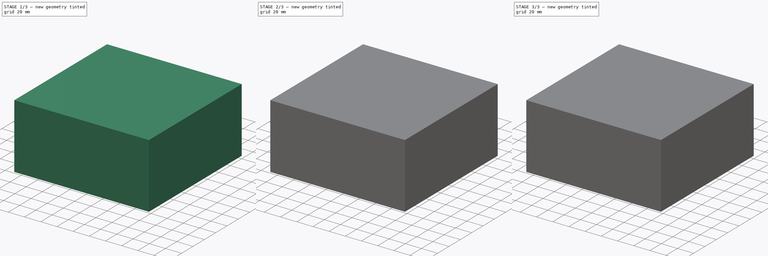
[diagram: build sequence overview — one tinted view per stage of 3, left to right]
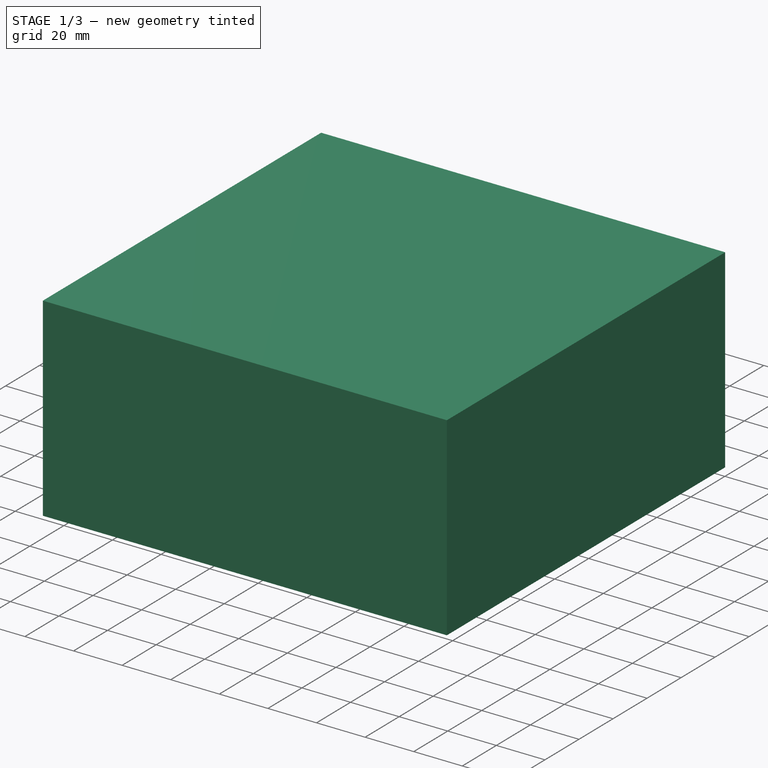
[diagram: stage 1 of 3 — iso view after this stage's code; geometry added in this stage tinted green]
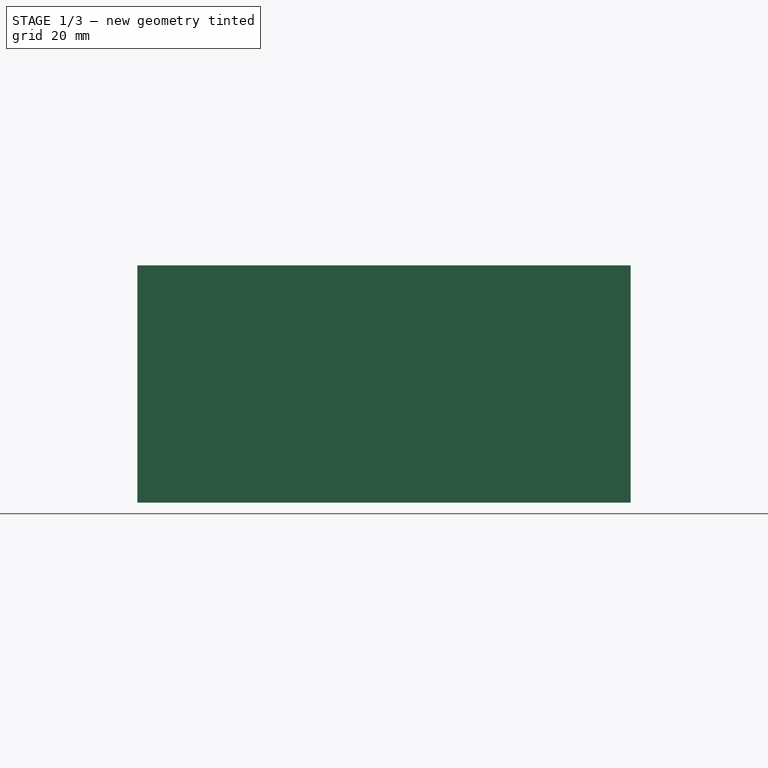
[diagram: stage 1 of 3 — front view after this stage's code; geometry added in this stage tinted green]
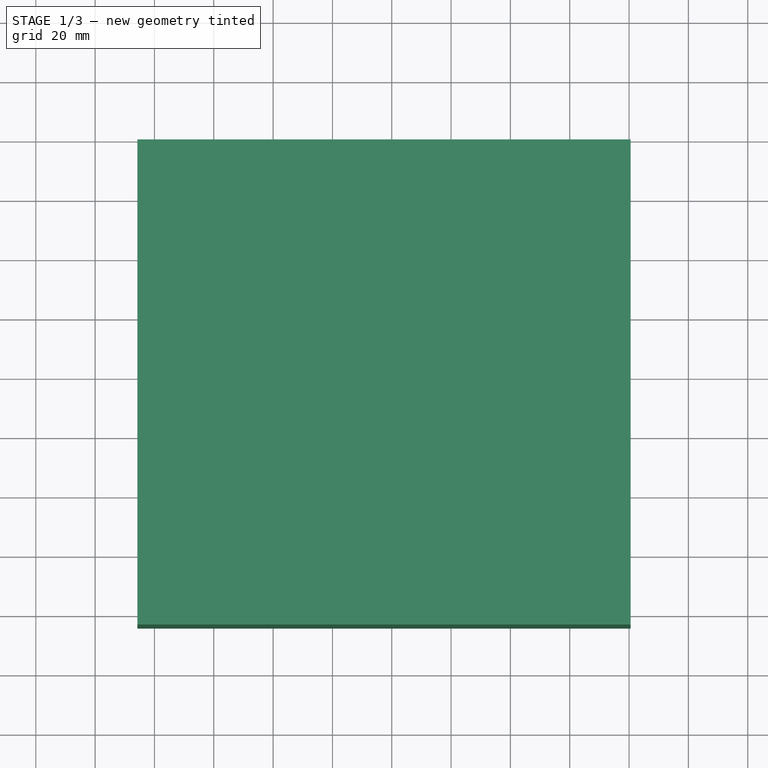
[diagram: stage 1 of 3 — top view after this stage's code; geometry added in this stage tinted green]
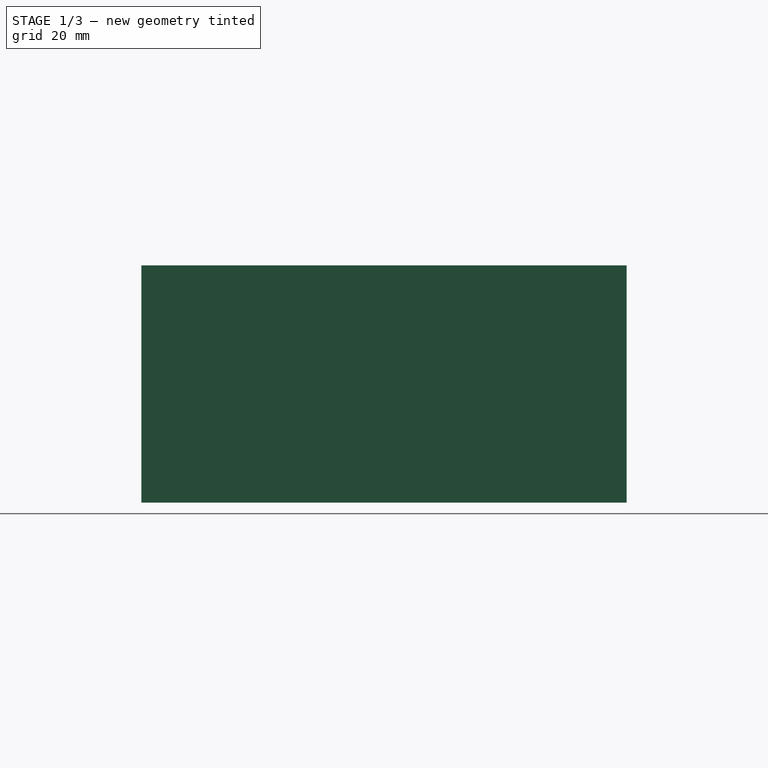
[diagram: stage 1 of 3 — right view after this stage's code; geometry added in this stage tinted green]
FCSTD DOCUMENT  (FreeCAD 0.20R29177 (Git))
Label: Inverted_F_antenna
License: All rights reserved
LicenseURL: http://en.wikipedia.org/wiki/All_rights_reserved
objects: Sketcher::SketchObject×9, Part::Extrusion×8
note: 17 computed .brp shape members not serialized (recipe doc carries the construction recipe); baked Part::Feature solids carry a one-line shape summary decoded from their .brp

FEATURE [Sketcher::SketchObject] Sketch007  label="bottom gnd sketch"
  FullyConstrained = false
  Placement = pos=(0,0,-1.5) rot=(0,0,1;0rad)
  sketch-geometry (4):
    g0: LineSegment StartX=0 StartY=-10.0217 StartZ=0 EndX=79.8497 EndY=-10.0217 EndZ=0
    g1: LineSegment StartX=79.8497 StartY=-10.0217 StartZ=0 EndX=79.8497 EndY=-79.0457 EndZ=0
    g2: LineSegment StartX=79.8497 StartY=-79.0457 StartZ=0 EndX=0 EndY=-79.0457 EndZ=0
    g3: LineSegment StartX=0 StartY=-79.0457 StartZ=0 EndX=0 EndY=-10.0217 EndZ=0
  constraints (9):
    c: Coincident(g0,g1)
    c: Coincident(g1,g2)
    c: Coincident(g2,g3)
    c: Coincident(g3,g0)
    c: Horizontal(g0)
    c: Horizontal(g2)
    c: Vertical(g1)
    c: Vertical(g3)
    c: PointOnObject(g0,g-2)
FEATURE [Part::Extrusion] Extrude007  label="bottom gnd patch"
  Base = -> Sketch007
  Dir = (0,0,1)
  DirMode = 2
  FaceMakerClass = Part::FaceMakerBullseye
  LengthFwd = 0.035
  LengthRev = 0
  Reversed = true
  Solid = true
  Symmetric = false
FEATURE [Sketcher::SketchObject] Sketch008  label="E monitor"
  FullyConstrained = false
  Placement = pos=(0,0,1) rot=(0,0,1;0rad)
  sketch-geometry (4):
    g0: LineSegment StartX=-6.29394 StartY=8.93904 StartZ=0 EndX=88.0528 EndY=8.93904 EndZ=0
    g1: LineSegment StartX=88.0528 StartY=8.93904 StartZ=0 EndX=88.0528 EndY=-87.5628 EndZ=0
    g2: LineSegment StartX=88.0528 StartY=-87.5628 StartZ=0 EndX=-6.29394 EndY=-87.5628 EndZ=0
    g3: LineSegment StartX=-6.29394 StartY=-87.5628 StartZ=0 EndX=-6.29394 EndY=8.93904 EndZ=0
  constraints (8):
    c: Coincident(g0,g1)
    c: Coincident(g1,g2)
    c: Coincident(g2,g3)
    c: Coincident(g3,g0)
    c: Horizontal(g0)
    c: Horizontal(g2)
    c: Vertical(g1)
    c: Vertical(g3)
FEATURE [Sketcher::SketchObject] Sketch009
  FullyConstrained = false
  sketch-geometry (4):
    g0: LineSegment StartX=-45.7475 StartY=39.4423 StartZ=0 EndX=120.52 EndY=39.4423 EndZ=0
    g1: LineSegment StartX=120.52 StartY=39.4423 StartZ=0 EndX=120.52 EndY=-124.127 EndZ=0
    g2: LineSegment StartX=120.52 StartY=-124.127 StartZ=0 EndX=-45.7475 EndY=-124.127 EndZ=0
    g3: LineSegment StartX=-45.7475 StartY=-124.127 StartZ=0 EndX=-45.7475 EndY=39.4423 EndZ=0
  constraints (8):
    c: Coincident(g0,g1)
    c: Coincident(g1,g2)
    c: Coincident(g2,g3)
    c: Coincident(g3,g0)
    c: Horizontal(g0)
    c: Horizontal(g2)
    c: Vertical(g1)
    c: Vertical(g3)
FEATURE [Part::Extrusion] Extrude008  label="airBox"
  Base = -> Sketch009
  Dir = (0,0,1)
  DirMode = 2
  FaceMakerClass = Part::FaceMakerBullseye
  LengthFwd = 80
  LengthRev = 0
  Solid = true
  Symmetric = true
FEATURE [Sketcher::SketchObject] Sketch010
  FullyConstrained = false
  sketch-geometry (4):
    g0: LineSegment StartX=0 StartY=1.64732 StartZ=0 EndX=80.709 EndY=1.64732 EndZ=0
    g1: LineSegment StartX=80.709 StartY=1.64732 StartZ=0 EndX=80.709 EndY=-80.7178 EndZ=0
    g2: LineSegment StartX=80.709 StartY=-80.7178 StartZ=0 EndX=0 EndY=-80.7178 EndZ=0
    g3: LineSegment StartX=0 StartY=-80.7178 StartZ=0 EndX=0 EndY=1.64732 EndZ=0
  constraints (9):
    c: Coincident(g0,g1)
    c: Coincident(g1,g2)
    c: Coincident(g2,g3)
    c: Coincident(g3,g0)
    c: Horizontal(g0)
    c: Horizontal(g2)
    c: Vertical(g1)
    c: Vertical(g3)
    c: PointOnObject(g0,g-2)
FEATURE [Part::Extrusion] Extrude009  label="simulationModelBox"
  Base = -> Sketch010
  Dir = (0,0,1)
  DirMode = 2
  FaceMakerClass = Part::FaceMakerBullseye
  LengthFwd = 4
  LengthRev = 0
  Solid = true
  Symmetric = true
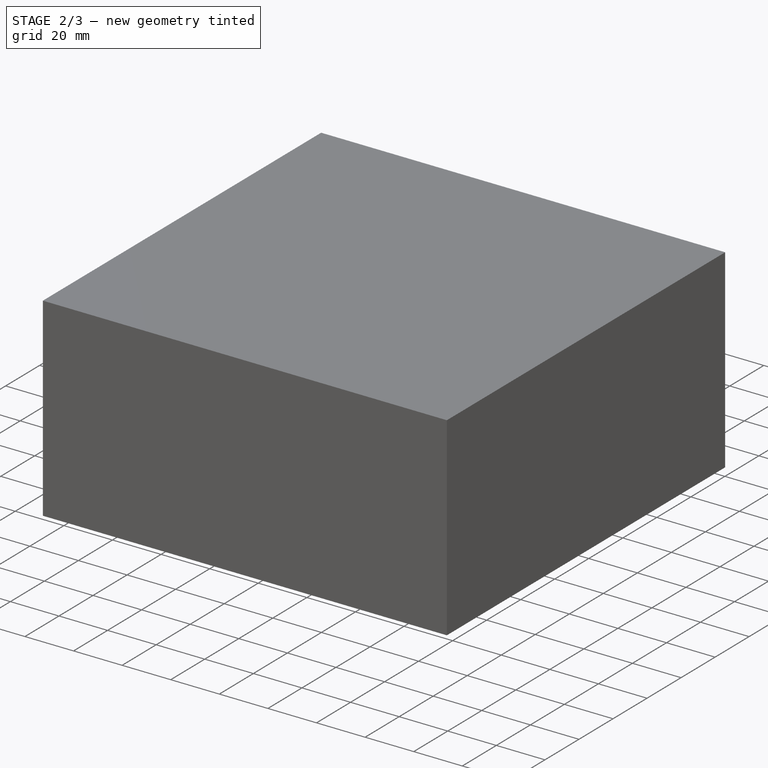
[diagram: stage 2 of 3 — iso view after this stage's code; geometry added in this stage tinted green]
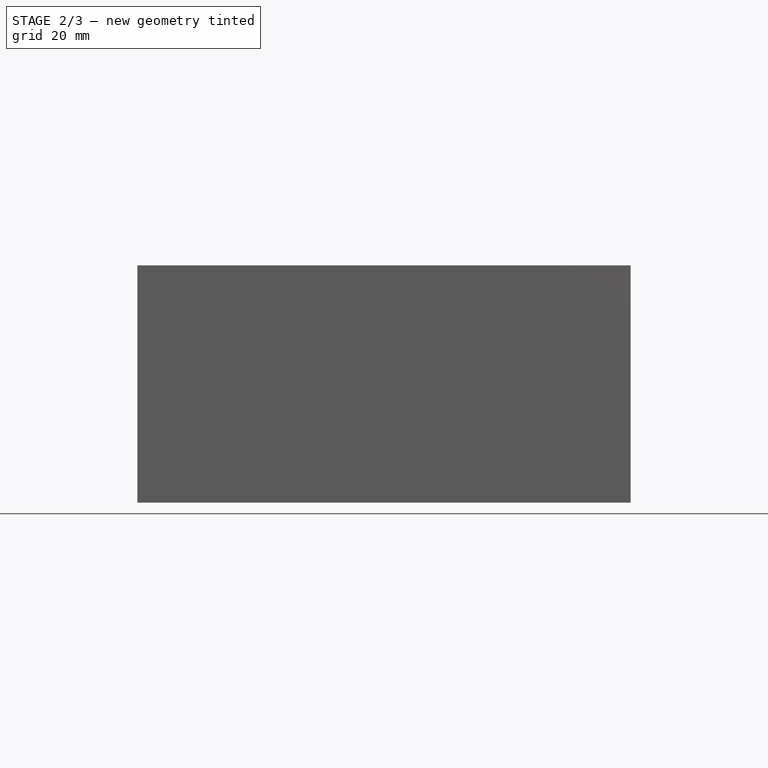
[diagram: stage 2 of 3 — front view after this stage's code; geometry added in this stage tinted green]
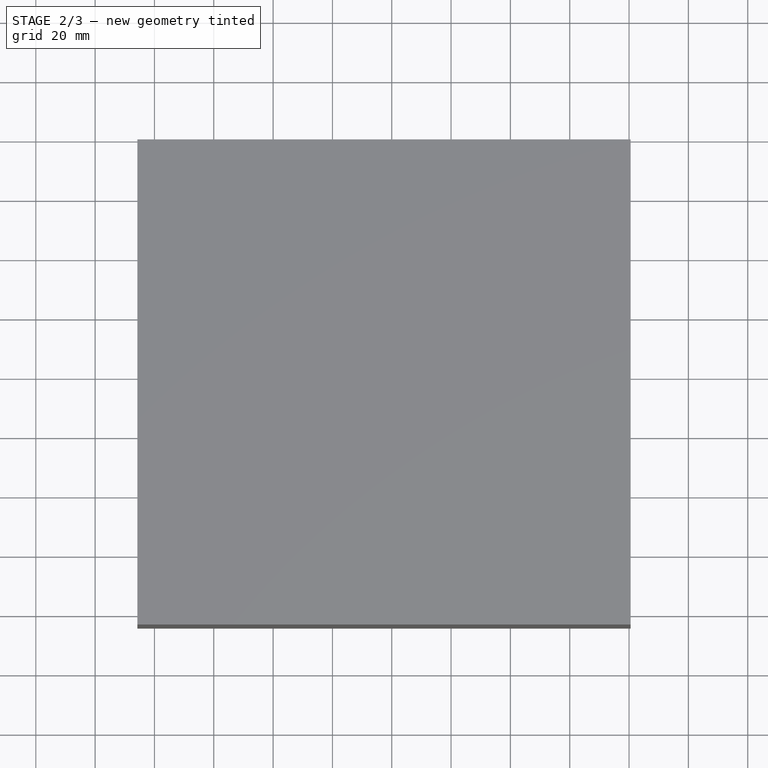
[diagram: stage 2 of 3 — top view after this stage's code; geometry added in this stage tinted green]
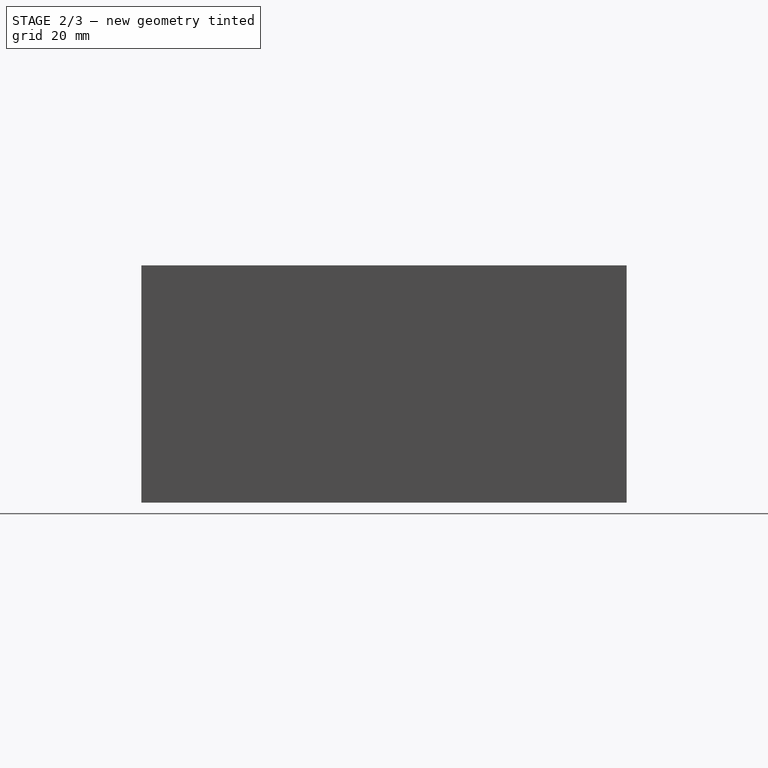
[diagram: stage 2 of 3 — right view after this stage's code; geometry added in this stage tinted green]
FEATURE [Part::Extrusion] Extrude003  label="top gnd patch"
  Base = -> Sketch002
  Dir = (0,0,1)
  DirMode = 2
  FaceMakerClass = Part::FaceMakerBullseye
  LengthFwd = 0.035
  LengthRev = 0
  Solid = true
  Symmetric = false
FEATURE [Sketcher::SketchObject] Sketch006
  FullyConstrained = false
  sketch-geometry (4):
    g0: LineSegment StartX=-10.458 StartY=15.0924 StartZ=0 EndX=92.7813 EndY=15.0924 EndZ=0
    g1: LineSegment StartX=92.7813 StartY=15.0924 StartZ=0 EndX=92.7813 EndY=-92.4337 EndZ=0
    g2: LineSegment StartX=92.7813 StartY=-92.4337 StartZ=0 EndX=-10.458 EndY=-92.4337 EndZ=0
    g3: LineSegment StartX=-10.458 StartY=-92.4337 StartZ=0 EndX=-10.458 EndY=15.0924 EndZ=0
  constraints (8):
    c: Coincident(g0,g1)
    c: Coincident(g1,g2)
    c: Coincident(g2,g3)
    c: Coincident(g3,g0)
    c: Horizontal(g0)
    c: Horizontal(g2)
    c: Vertical(g1)
    c: Vertical(g3)
FEATURE [Part::Extrusion] Extrude006  label="radiationBox"
  Base = -> Sketch006
  Dir = (0,0,1)
  DirMode = 2
  FaceMakerClass = Part::FaceMakerBullseye
  LengthFwd = 40
  LengthRev = 0
  Solid = true
  Symmetric = true
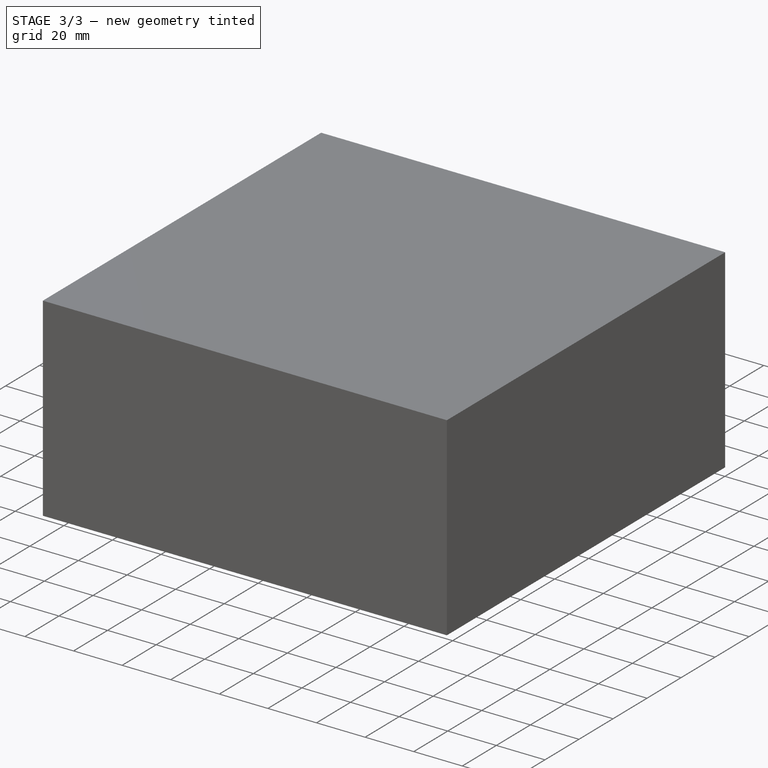
[diagram: stage 3 of 3 — iso view after this stage's code; geometry added in this stage tinted green]
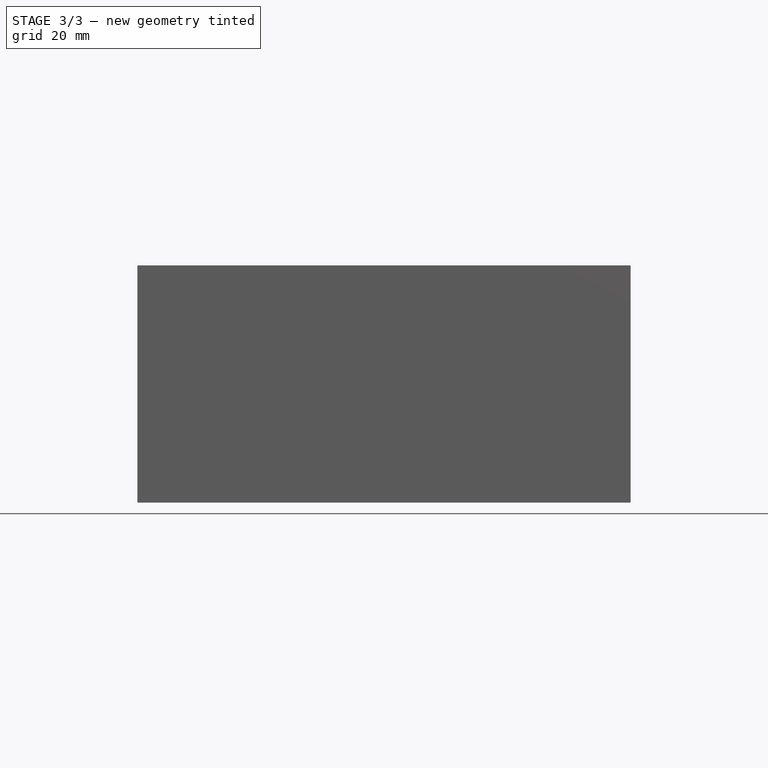
[diagram: stage 3 of 3 — front view after this stage's code; geometry added in this stage tinted green]
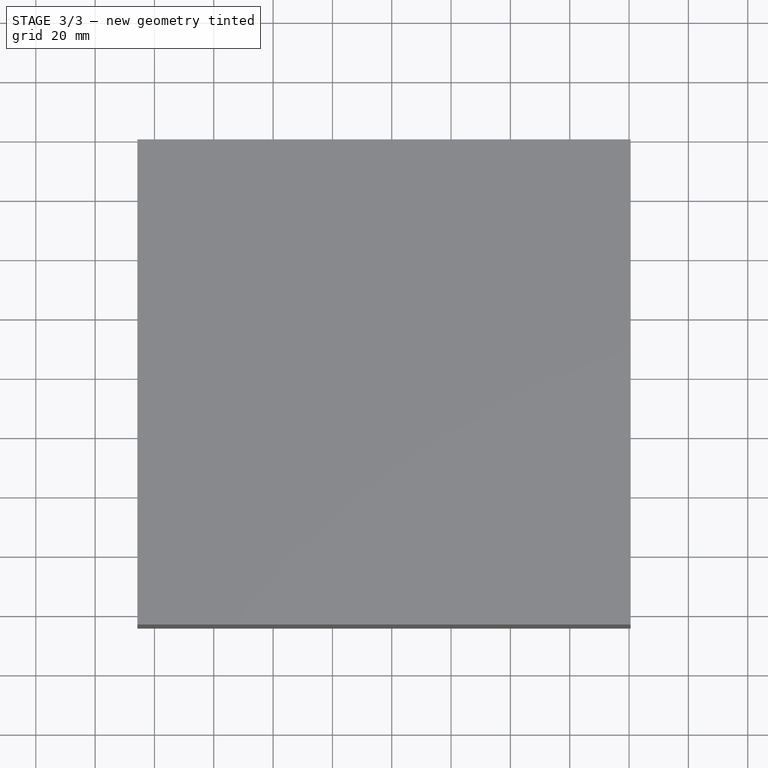
[diagram: stage 3 of 3 — top view after this stage's code; geometry added in this stage tinted green]
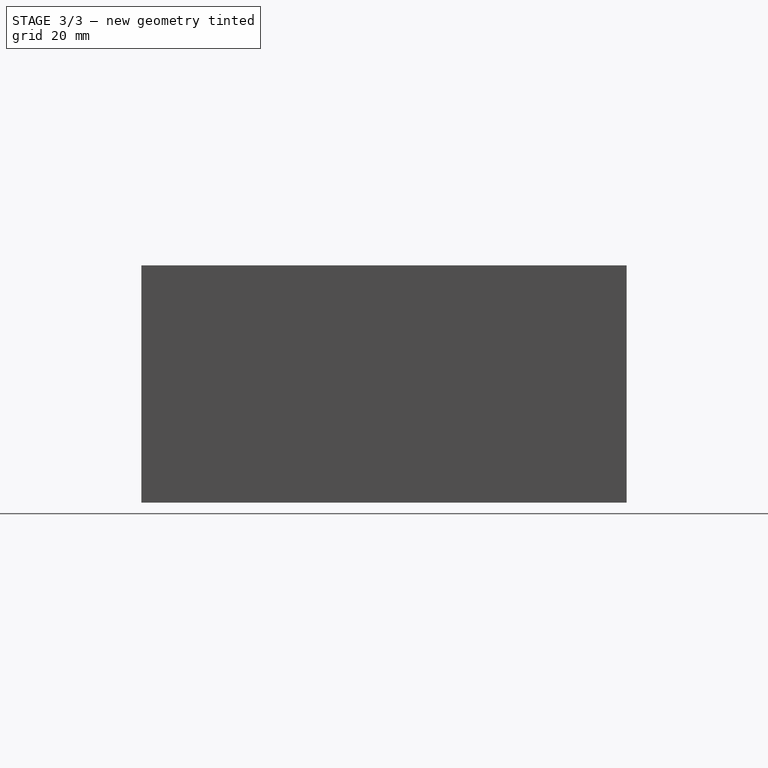
[diagram: stage 3 of 3 — right view after this stage's code; geometry added in this stage tinted green]
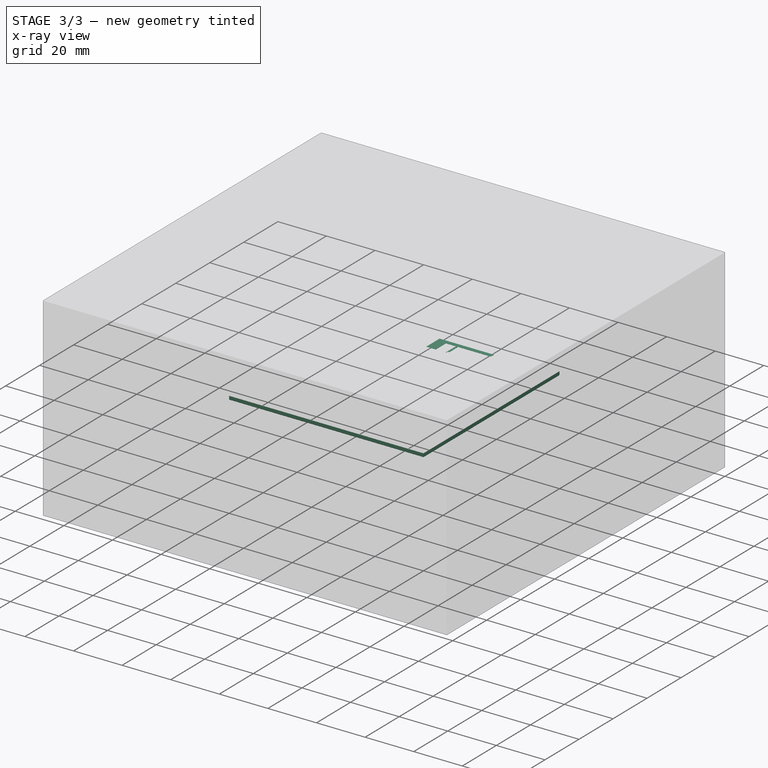
[diagram: stage 3 of 3 — x-ray composite at the iso view; earlier geometry ghosted, this stage's added geometry solid]
FEATURE [Sketcher::SketchObject] Sketch  label="substrate sketch"
  FullyConstrained = true
  sketch-geometry (4):
    g0: LineSegment StartX=0 StartY=0 StartZ=0 EndX=80 EndY=0 EndZ=0
    g1: LineSegment StartX=80 StartY=0 StartZ=0 EndX=80 EndY=-80 EndZ=0
    g2: LineSegment StartX=80 StartY=-80 StartZ=0 EndX=0 EndY=-80 EndZ=0
    g3: LineSegment StartX=0 StartY=-80 StartZ=0 EndX=0 EndY=0 EndZ=0
  constraints (11):
    c: Coincident(g0,g1)
    c: Coincident(g1,g2)
    c: Coincident(g2,g3)
    c: Coincident(g3,g0)
    c: Horizontal(g0)
    c: Horizontal(g2)
    c: Vertical(g1)
    c: Vertical(g3)
    c: Coincident(g0,g-1)
    c: Distance(g0) = 80
    c: Distance(g3) = 80
FEATURE [Sketcher::SketchObject] Sketch001  label="antenna patch sketch"
  FullyConstrained = true
  sketch-geometry (16):
    g0: GeomPoint X=0 Y=-10 Z=0
    g1: GeomPoint X=41 Y=-9 Z=0
    g2: GeomPoint X=40 Y=-9 Z=0
    g3: GeomPoint X=36 Y=-10 Z=0
    g4: GeomPoint X=54.5 Y=-2 Z=0
    g5: LineSegment StartX=32 StartY=-2 StartZ=0 EndX=54.5 EndY=-2 EndZ=0
    g6: LineSegment StartX=36 StartY=-10 StartZ=0 EndX=36 EndY=-4 EndZ=0
    g7: LineSegment StartX=40 StartY=-9 StartZ=0 EndX=40 EndY=-4 EndZ=0
    g8: LineSegment StartX=40 StartY=-4 StartZ=0 EndX=36 EndY=-4 EndZ=0
    g9: LineSegment StartX=40 StartY=-9 StartZ=0 EndX=41 EndY=-9 EndZ=0
    g10: GeomPoint X=41 Y=-4 Z=0
    g11: LineSegment StartX=41 StartY=-4 StartZ=0 EndX=41 EndY=-9 EndZ=0
    g12: LineSegment StartX=54.5 StartY=-4 StartZ=0 EndX=41 EndY=-4 EndZ=0
    g13: LineSegment StartX=36 StartY=-10 StartZ=0 EndX=32 EndY=-10 EndZ=0
    g14: LineSegment StartX=32 StartY=-10 StartZ=0 EndX=32 EndY=-2 EndZ=0
    g15: LineSegment StartX=54.5 StartY=-4 StartZ=0 EndX=54.5 EndY=-2 EndZ=0
  constraints (37):
    c: PointOnObject(g0,g-2)
    c: Distance(g-1,g0) = 10
    c: Distance(g1,g-1) = 9
    c: Distance(g3,g-1) = 10
    c: Distance(g1,g2) = 1
    c: Coincident(g5,g4)
    c: Horizontal(g5)
    c: Vertical(g6)
    c: Distance(g6,g5) = 2
    c: Coincident(g7,g2)
    c: Vertical(g7)
    c: Coincident(g8,g7)
    c: Coincident(g8,g6)
    c: Parallel(g8,g5)
    c: Coincident(g9,g7)
    c: Coincident(g9,g1)
    c: Distance(g10,g5) = 2
    c: Distance(g7,g10) = 1
    c: Coincident(g11,g10)
    c: Coincident(g11,g9)
    c: Coincident(g13,g6)
    c: Horizontal(g13)
    c: Coincident(g14,g13)
    c: Coincident(g14,g5)
    c: Vertical(g14)
    c: Coincident(g15,g12)
    c: Coincident(g15,g5)
    c: Parallel(g14,g15)
    c: Distance(g14) = 8
    c: Coincident(g6,g3)
    c: Coincident(g12,g11)
    c: Parallel(g12,g5)
    c: Distance(g13) = 4
    c: Distance(g5) = 22.5
    c: Distance(g8) = 4
    c: Perpendicular(g11,g9)
    c: DistanceX(g-1,g7) = 40
FEATURE [Sketcher::SketchObject] Sketch002  label="top gnd patch sketch"
  FullyConstrained = true
  sketch-geometry (5):
    g0: GeomPoint X=0 Y=-10 Z=0
    g1: LineSegment StartX=0 StartY=-10 StartZ=0 EndX=80 EndY=-10 EndZ=0
    g2: LineSegment StartX=80 StartY=-10 StartZ=0 EndX=80 EndY=-80 EndZ=0
    g3: LineSegment StartX=80 StartY=-80 StartZ=0 EndX=0 EndY=-80 EndZ=0
    g4: LineSegment StartX=0 StartY=-80 StartZ=0 EndX=0 EndY=-10 EndZ=0
  constraints (13):
    c: PointOnObject(g0,g-2)
    c: DistanceY(g0,g-1) = 10
    c: Coincident(g1,g2)
    c: Coincident(g2,g3)
    c: Coincident(g3,g4)
    c: Coincident(g4,g1)
    c: Horizontal(g1)
    c: Horizontal(g3)
    c: Vertical(g2)
    c: Vertical(g4)
    c: Coincident(g1,g0)
    c: Distance(g4) = 70
    c: Distance(g3) = 80
FEATURE [Sketcher::SketchObject] Sketch003  label="portIn sketch"
  FullyConstrained = false
  sketch-geometry (4):
    g0: LineSegment StartX=39.9836 StartY=-9.00109 StartZ=0 EndX=41.0414 EndY=-9.00109 EndZ=0
    g1: LineSegment StartX=41.0414 StartY=-9.00109 StartZ=0 EndX=41.0414 EndY=-9.99176 EndZ=0
    g2: LineSegment StartX=41.0414 StartY=-9.99176 StartZ=0 EndX=39.9836 EndY=-9.99176 EndZ=0
    g3: LineSegment StartX=39.9836 StartY=-9.99176 StartZ=0 EndX=39.9836 EndY=-9.00109 EndZ=0
  constraints (8):
    c: Coincident(g0,g1)
    c: Coincident(g1,g2)
    c: Coincident(g2,g3)
    c: Coincident(g3,g0)
    c: Horizontal(g0)
    c: Horizontal(g2)
    c: Vertical(g1)
    c: Vertical(g3)
FEATURE [Part::Extrusion] Extrude  label="substrate"
  Base = -> Sketch
  Dir = (0,0,1)
  DirMode = 2
  FaceMakerClass = Part::FaceMakerBullseye
  LengthFwd = 1.5
  LengthRev = 0
  Reversed = true
  Solid = true
  Symmetric = false
FEATURE [Part::Extrusion] Extrude001  label="antenna patch"
  Base = -> Sketch001
  Dir = (0,0,1)
  DirMode = 2
  FaceMakerClass = Part::FaceMakerBullseye
  LengthFwd = 0.035
  LengthRev = 0
  Solid = true
  Symmetric = false
FEATURE [Part::Extrusion] Extrude002  label="portIn"
  Base = -> Sketch003
  Dir = (0,0,1)
  DirMode = 2
  FaceMakerClass = Part::FaceMakerBullseye
  LengthFwd = 0.04
  LengthRev = 0
  Solid = true
  Symmetric = false
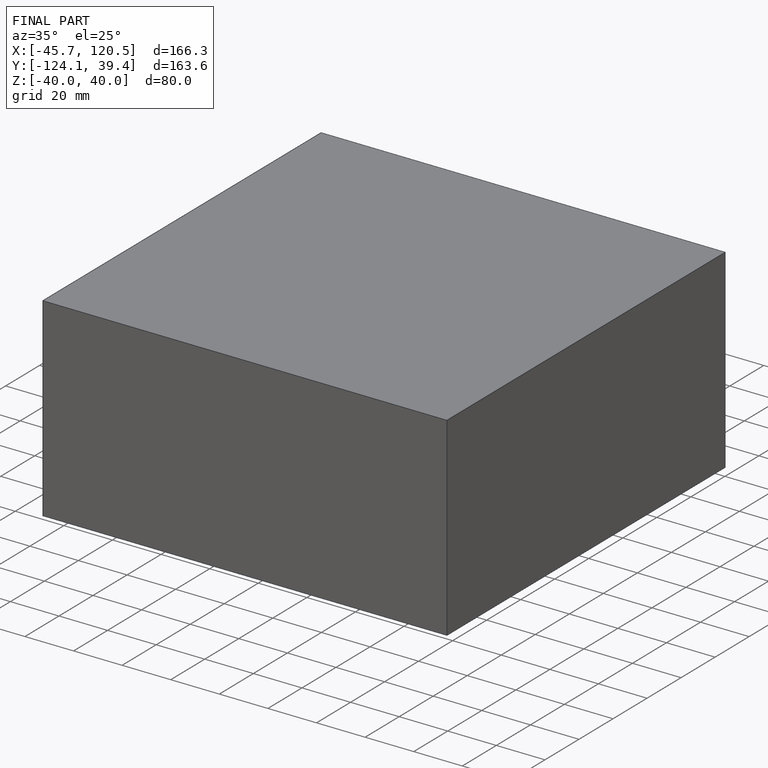
[diagram: finished part — iso view with bounding-box wireframe]
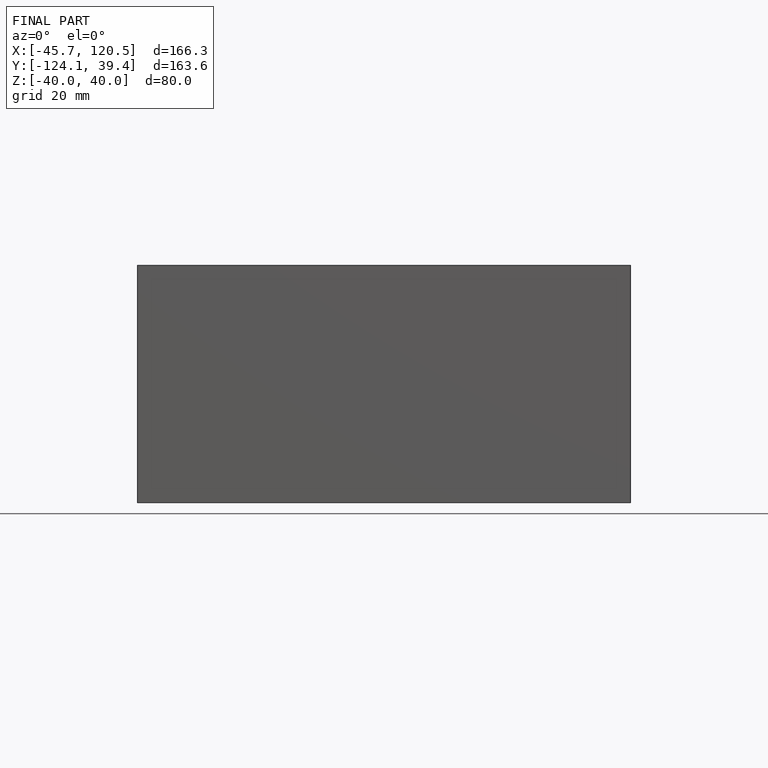
[diagram: finished part — front view with bounding-box wireframe]
